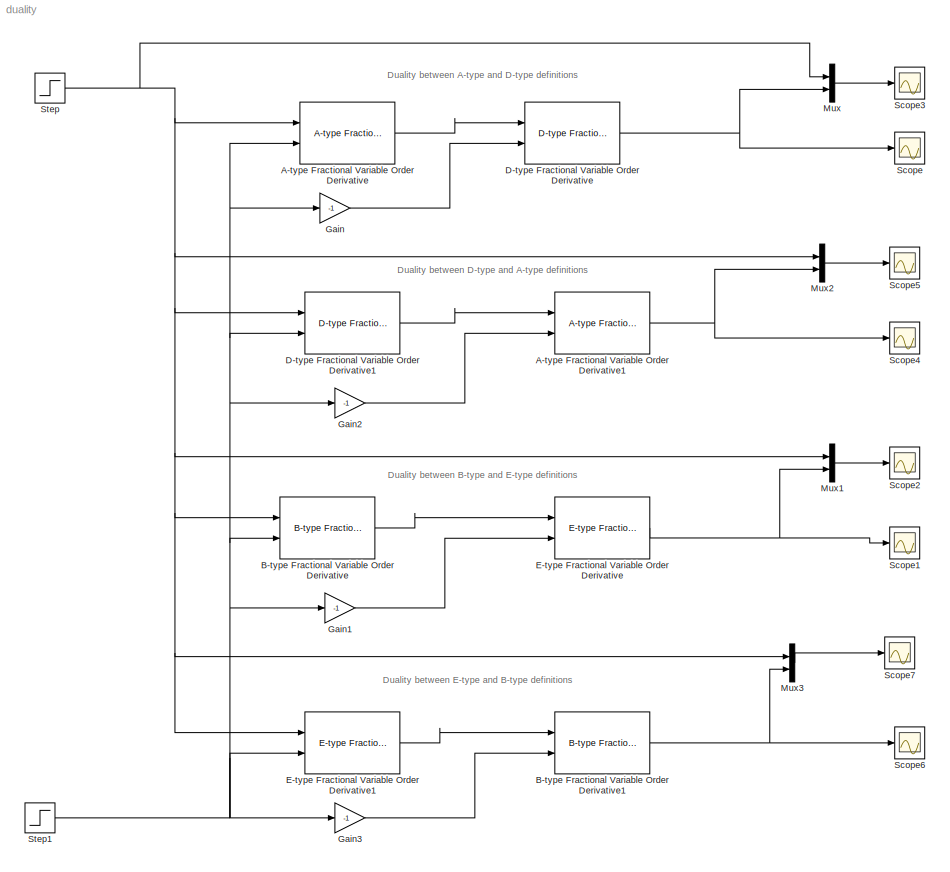
MODEL duality
KIND model
BLOCK [Reference] A-type Fractional Variable Order Derivative  REF=voderiv/A-type Fractional Variable Order Derivative
  N = 1
  Nbuf = 500
  Ports = [2, 1]
  SourceBlock = voderiv/A-type Fractional Variable Order Derivative
  SourceType = Variable Fractional Order Derivative 1st type
  Ts = 0.02
BLOCK [Reference] A-type Fractional Variable Order Derivative1  REF=voderiv/A-type Fractional Variable Order Derivative
  N = 1
  Nbuf = 500
  Ports = [2, 1]
  SourceBlock = voderiv/A-type Fractional Variable Order Derivative
  SourceType = Variable Fractional Order Derivative 1st type
  Ts = 0.02
BLOCK [Reference] B-type Fractional Variable Order Derivative  REF=voderiv/B-type Fractional Variable Order Derivative
  N = 1
  Nbuf = 500
  Ports = [2, 1]
  SourceBlock = voderiv/B-type Fractional Variable Order Derivative
  SourceType = Variable Fractional Order Derivative 2nd type
  Ts = 0.02
BLOCK [Reference] B-type Fractional Variable Order Derivative1  REF=voderiv/B-type Fractional Variable Order Derivative
  N = 1
  Nbuf = 500
  Ports = [2, 1]
  SourceBlock = voderiv/B-type Fractional Variable Order Derivative
  SourceType = Variable Fractional Order Derivative 2nd type
  Ts = 0.02
BLOCK [Reference] D-type Fractional Variable Order Derivative  REF=voderiv/D-type Fractional Variable Order Derivative
  N = 1
  Nbuf = 500
  Ports = [2, 1]
  SourceBlock = voderiv/D-type Fractional Variable Order Derivative
  SourceType = Variable Fractional Order Derivative 4th type
  Ts = 0.02
BLOCK [Reference] D-type Fractional Variable Order Derivative1  REF=voderiv/D-type Fractional Variable Order Derivative
  N = 1
  Nbuf = 500
  Ports = [2, 1]
  SourceBlock = voderiv/D-type Fractional Variable Order Derivative
  SourceType = Variable Fractional Order Derivative 4th type
  Ts = 0.02
BLOCK [Reference] E-type Fractional Variable Order Derivative  REF=voderiv/E-type Fractional Variable Order Derivative
  N = 1
  Nbuf = 500
  Ports = [2, 1]
  SourceBlock = voderiv/E-type Fractional Variable Order Derivative
  SourceType = Variable Fractional Order Derivative 5th type
  Ts = 0.02
BLOCK [Reference] E-type Fractional Variable Order Derivative1  REF=voderiv/E-type Fractional Variable Order Derivative
  N = 1
  Nbuf = 500
  Ports = [2, 1]
  SourceBlock = voderiv/E-type Fractional Variable Order Derivative
  SourceType = Variable Fractional Order Derivative 5th type
  Ts = 0.02
BLOCK [Gain] Gain
  Gain = -1
  OutDataTypeMode = Inherit via internal rule
  OutDataTypeStr = Inherit: Inherit via internal rule
  ParamDataTypeStr = Inherit: Inherit via internal rule
  ParameterDataTypeMode = Inherit via internal rule
  SaturateOnIntegerOverflow = off
BLOCK [Gain] Gain1
  Gain = -1
  OutDataTypeMode = Inherit via internal rule
  OutDataTypeStr = Inherit: Inherit via internal rule
  ParamDataTypeStr = Inherit: Inherit via internal rule
  ParameterDataTypeMode = Inherit via internal rule
  SaturateOnIntegerOverflow = off
BLOCK [Gain] Gain2
  Gain = -1
  OutDataTypeMode = Inherit via internal rule
  OutDataTypeStr = Inherit: Inherit via internal rule
  ParamDataTypeStr = Inherit: Inherit via internal rule
  ParameterDataTypeMode = Inherit via internal rule
  SaturateOnIntegerOverflow = off
BLOCK [Gain] Gain3
  Gain = -1
  OutDataTypeMode = Inherit via internal rule
  OutDataTypeStr = Inherit: Inherit via internal rule
  ParamDataTypeStr = Inherit: Inherit via internal rule
  ParameterDataTypeMode = Inherit via internal rule
  SaturateOnIntegerOverflow = off
BLOCK [Mux] Mux
  DisplayOption = bar
  Inputs = 2
  Ports = [2, 1]
BLOCK [Mux] Mux1
  DisplayOption = bar
  Inputs = 2
  Ports = [2, 1]
BLOCK [Mux] Mux2
  DisplayOption = bar
  Inputs = 2
  Ports = [2, 1]
BLOCK [Mux] Mux3
  DisplayOption = bar
  Inputs = 2
  Ports = [2, 1]
BLOCK [Scope] Scope
  DataFormat = StructureWithTime
  Floating = off
  NumInputPorts = 1
  Ports = [1]
  SampleTime = 0
BLOCK [Scope] Scope1
  DataFormat = StructureWithTime
  Floating = off
  NumInputPorts = 1
  Ports = [1]
  SampleTime = 0
  SaveName = ScopeData1
BLOCK [Scope] Scope2
  DataFormat = StructureWithTime
  Floating = off
  NumInputPorts = 1
  Ports = [1]
  SampleTime = 0
  SaveName = ScopeData2
BLOCK [Scope] Scope3
  DataFormat = StructureWithTime
  Floating = off
  NumInputPorts = 1
  Ports = [1]
  SampleTime = 0
  SaveName = ScopeData3
BLOCK [Scope] Scope4
  DataFormat = StructureWithTime
  Floating = off
  NumInputPorts = 1
  Ports = [1]
  SampleTime = 0
  SaveName = ScopeData4
BLOCK [Scope] Scope5
  DataFormat = StructureWithTime
  Floating = off
  NumInputPorts = 1
  Ports = [1]
  SampleTime = 0
  SaveName = ScopeData5
BLOCK [Scope] Scope6
  DataFormat = StructureWithTime
  Floating = off
  NumInputPorts = 1
  Ports = [1]
  SampleTime = 0
  SaveName = ScopeData6
BLOCK [Scope] Scope7
  DataFormat = StructureWithTime
  Floating = off
  NumInputPorts = 1
  Ports = [1]
  SampleTime = 0
  SaveName = ScopeData7
BLOCK [Step] Step
  SampleTime = 0
BLOCK [Step] Step1
  After = -0.8
  Before = -0.5
  SampleTime = 0
  Time = 5
ANNOTATION (root): Duality between A-type and D-type definitions
ANNOTATION (root): Duality between B-type and E-type definitions
ANNOTATION (root): Duality between D-type and A-type definitions
ANNOTATION (root): Duality between E-type and B-type definitions
NET A-type Fractional Variable Order Derivative1:1 -> Mux2:2, Scope4:1
LINE A-type Fractional Variable Order Derivative:1 -> D-type Fractional Variable Order Derivative:1
NET B-type Fractional Variable Order Derivative1:1 -> Mux3:2, Scope6:1
LINE B-type Fractional Variable Order Derivative:1 -> E-type Fractional Variable Order Derivative:1
LINE D-type Fractional Variable Order Derivative1:1 -> A-type Fractional Variable Order Derivative1:1
NET D-type Fractional Variable Order Derivative:1 -> Mux:2, Scope:1
LINE E-type Fractional Variable Order Derivative1:1 -> B-type Fractional Variable Order Derivative1:1
NET E-type Fractional Variable Order Derivative:1 -> Mux1:2, Scope1:1
LINE Gain1:1 -> E-type Fractional Variable Order Derivative:2
LINE Gain2:1 -> A-type Fractional Variable Order Derivative1:2
LINE Gain3:1 -> B-type Fractional Variable Order Derivative1:2
LINE Gain:1 -> D-type Fractional Variable Order Derivative:2
LINE Mux1:1 -> Scope2:1
LINE Mux2:1 -> Scope5:1
LINE Mux3:1 -> Scope7:1
LINE Mux:1 -> Scope3:1
NET Step1:1 -> A-type Fractional Variable Order Derivative:2, B-type Fractional Variable Order Derivative:2, D-type Fractional Variable Order Derivative1:2, E-type Fractional Variable Order Derivative1:2, Gain1:1, Gain2:1, Gain3:1, Gain:1
NET Step:1 -> A-type Fractional Variable Order Derivative:1, B-type Fractional Variable Order Derivative:1, D-type Fractional Variable Order Derivative1:1, E-type Fractional Variable Order Derivative1:1, Mux1:1, Mux2:1, Mux3:1, Mux:1
note: NET lines group one-source signal fan-out (src -> all destinations, sorted); 1:1 wires keep LINE
